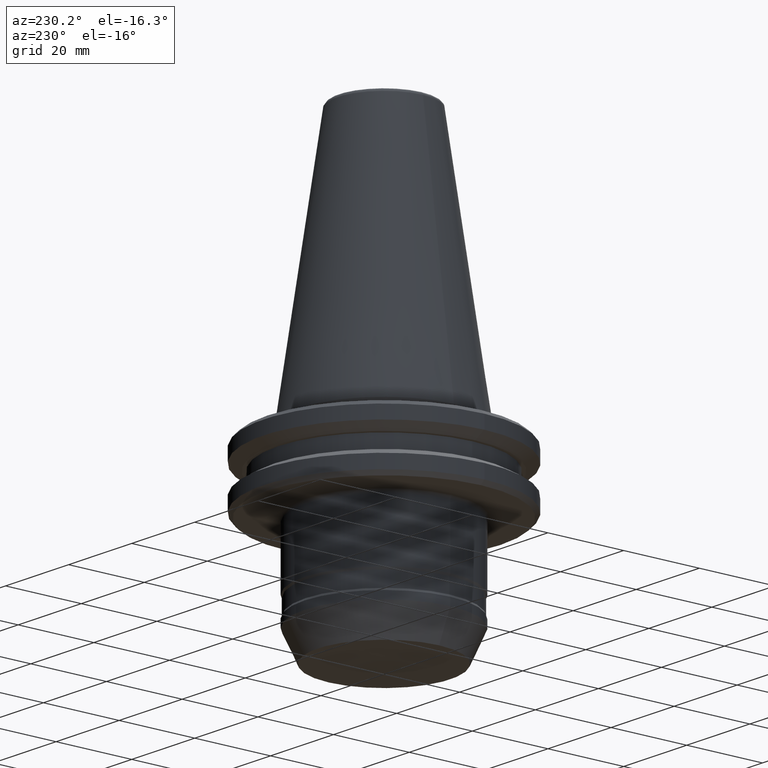
[diagram: clean part render]
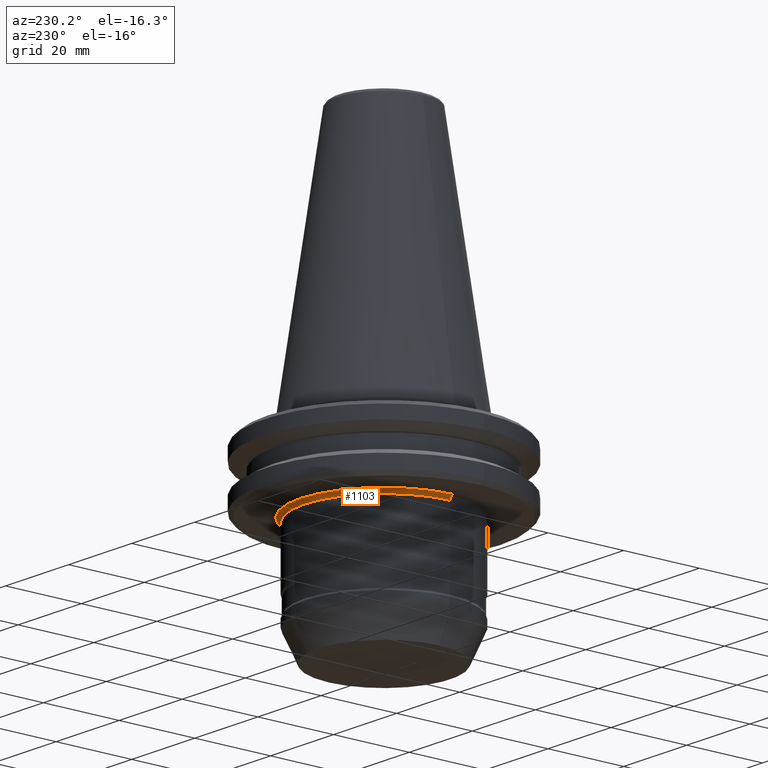
[diagram: same view with one face highlighted and labeled with its STEP entity id]
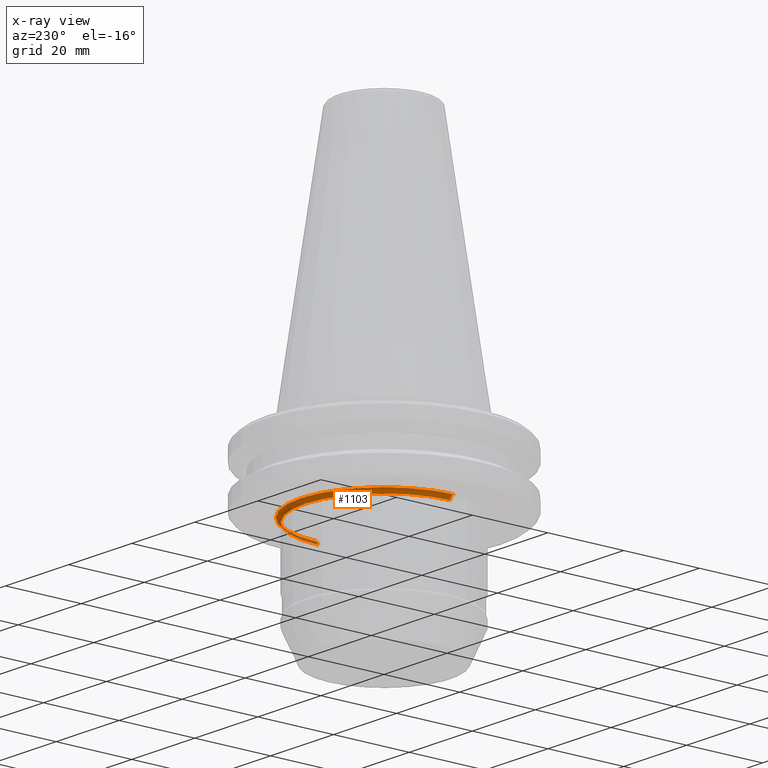
[diagram: x-ray of the same camera — body ghosted, the highlighted face saturated]
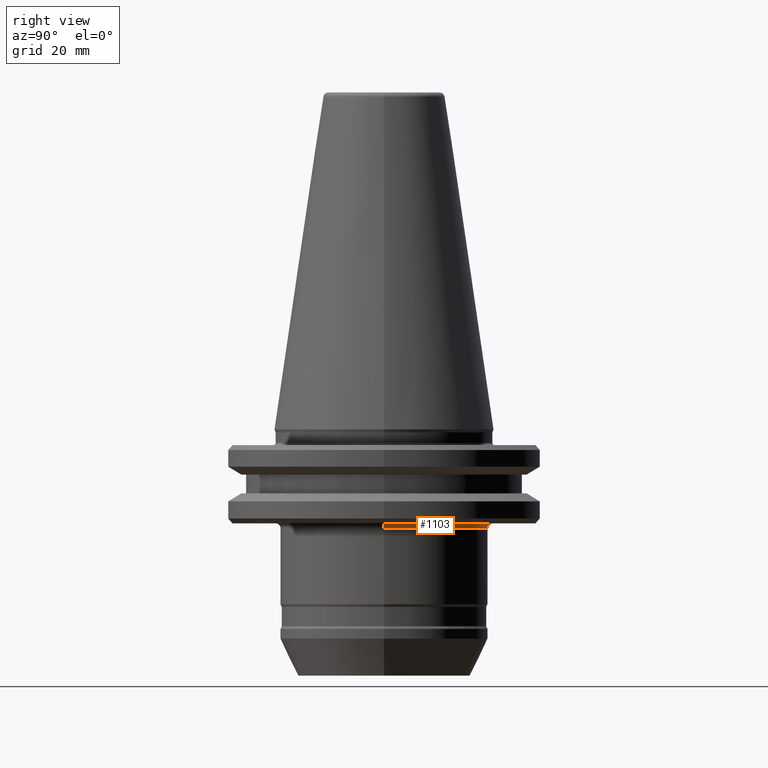
[diagram: same view with one face highlighted and labeled with its STEP entity id]
A machine part, auxiliary view. The second image highlights one B-rep face of the part: STEP entity #1103.
The next image is the same camera in x-ray: the body ghosted, the highlighted face saturated — about 7% of this face is hidden behind the body in this view.
A second angle (right view) of the same face is appended — the face is thin or edge-on in the first view.
In plain terms, the highlighted toroidal blend (fillet) surface has major radius 22 mm and minor (blend) radius 1 mm.
Its self-contained STEP definition (entity closure, byte-faithful):
#76 = AXIS2_PLACEMENT_3D ( 'NONE', #93, #362, #715 ) ;
#93 = CARTESIAN_POINT ( 'NONE',  ( 0.0000000000000000000, 0.0000000000000000000, -20.10000000000022900 ) ) ;
#152 = AXIS2_PLACEMENT_3D ( 'NONE', #789, #253, #879 ) ;
#153 = CARTESIAN_POINT ( 'NONE',  ( -21.99999999998093600, 2.694222958121842600E-015, -19.10000000000022900 ) ) ;
#227 = DIRECTION ( 'NONE',  ( -0.0000000000000000000, -0.0000000000000000000, 1.000000000000000000 ) ) ;
#253 = DIRECTION ( 'NONE',  ( 1.224646799147353200E-016, 1.000000000000000000, 0.0000000000000000000 ) ) ;
#262 = CARTESIAN_POINT ( 'NONE',  ( 21.99999999998093600, 0.0000000000000000000, -19.10000000000022900 ) ) ;
#362 = DIRECTION ( 'NONE',  ( -0.0000000000000000000, -0.0000000000000000000, 1.000000000000000000 ) ) ;
#378 = CARTESIAN_POINT ( 'NONE',  ( 21.99999999998092200, 0.0000000000000000000, -20.10000000000022900 ) ) ;
#432 = EDGE_CURVE ( 'NONE', #1018, #679, #738, .T. ) ;
#441 = CARTESIAN_POINT ( 'NONE',  ( 0.0000000000000000000, 0.0000000000000000000, -19.10000000000022900 ) ) ;
#459 = AXIS2_PLACEMENT_3D ( 'NONE', #760, #227, #854 ) ;
#464 = ORIENTED_EDGE ( 'NONE', *, *, #920, .T. ) ;
#521 = VERTEX_POINT ( 'NONE', #575 ) ;
#533 = DIRECTION ( 'NONE',  ( 1.000000000000000000, 0.0000000000000000000, 0.0000000000000000000 ) ) ;
#575 = CARTESIAN_POINT ( 'NONE',  ( -20.99999999998094300, 2.571758278207107800E-015, -20.10000000000020000 ) ) ;
#583 = CIRCLE ( 'NONE', #1141, 21.99999999998095400 ) ;
#653 = DIRECTION ( 'NONE',  ( 0.0000000000000000000, -1.000000000000000000, 0.0000000000000000000 ) ) ;
#664 = CIRCLE ( 'NONE', #459, 20.99999999998094300 ) ;
#675 = VERTEX_POINT ( 'NONE', #153 ) ;
#679 = VERTEX_POINT ( 'NONE', #773 ) ;
#715 = DIRECTION ( 'NONE',  ( 1.000000000000000000, 0.0000000000000000000, 0.0000000000000000000 ) ) ;
#737 = EDGE_CURVE ( 'NONE', #675, #521, #901, .T. ) ;
#738 = CIRCLE ( 'NONE', #856, 0.9999999999999974500 ) ;
#760 = CARTESIAN_POINT ( 'NONE',  ( 0.0000000000000000000, 0.0000000000000000000, -20.10000000000020000 ) ) ;
#772 = TOROIDAL_SURFACE ( 'NONE', #76, 21.99999999998092200, 0.9999999999999974500 ) ;
#773 = CARTESIAN_POINT ( 'NONE',  ( 20.99999999998094300, 0.0000000000000000000, -20.10000000000020000 ) ) ;
#775 = EDGE_LOOP ( 'NONE', ( #923, #1155, #1085, #464 ) ) ;
#789 = CARTESIAN_POINT ( 'NONE',  ( -21.99999999998092200, 2.694222958121840600E-015, -20.10000000000022900 ) ) ;
#854 = DIRECTION ( 'NONE',  ( 1.000000000000000000, 0.0000000000000000000, 0.0000000000000000000 ) ) ;
#856 = AXIS2_PLACEMENT_3D ( 'NONE', #378, #653, #930 ) ;
#879 = DIRECTION ( 'NONE',  ( -1.000000000000000000, 1.224646799147353700E-016, 0.0000000000000000000 ) ) ;
#901 = CIRCLE ( 'NONE', #152, 0.9999999999999974500 ) ;
#920 = EDGE_CURVE ( 'NONE', #679, #521, #664, .T. ) ;
#923 = ORIENTED_EDGE ( 'NONE', *, *, #737, .F. ) ;
#930 = DIRECTION ( 'NONE',  ( 0.0000000000000000000, 0.0000000000000000000, -1.000000000000000000 ) ) ;
#999 = FACE_OUTER_BOUND ( 'NONE', #775, .T. ) ;
#1018 = VERTEX_POINT ( 'NONE', #262 ) ;
#1050 = EDGE_CURVE ( 'NONE', #1018, #675, #583, .T. ) ;
#1085 = ORIENTED_EDGE ( 'NONE', *, *, #432, .T. ) ;
#1095 = DIRECTION ( 'NONE',  ( -0.0000000000000000000, -0.0000000000000000000, 1.000000000000000000 ) ) ;
#1103 = ADVANCED_FACE ( 'NONE', ( #999 ), #772, .F. ) ;
#1141 = AXIS2_PLACEMENT_3D ( 'NONE', #441, #1095, #533 ) ;
#1155 = ORIENTED_EDGE ( 'NONE', *, *, #1050, .F. ) ;